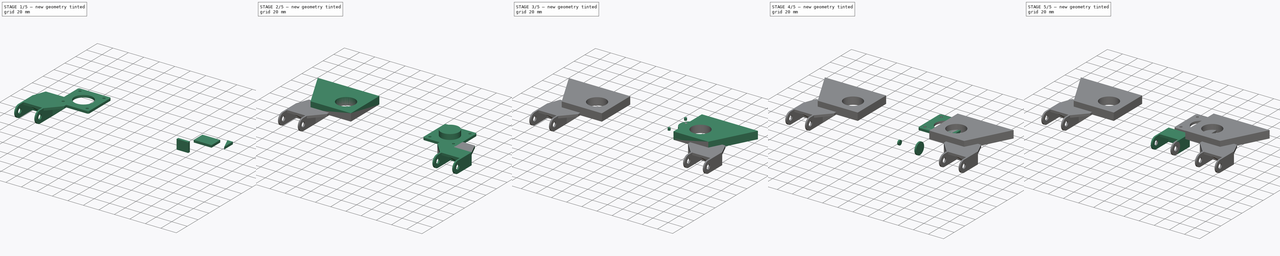
[diagram: build sequence overview — one tinted view per stage of 5, left to right]
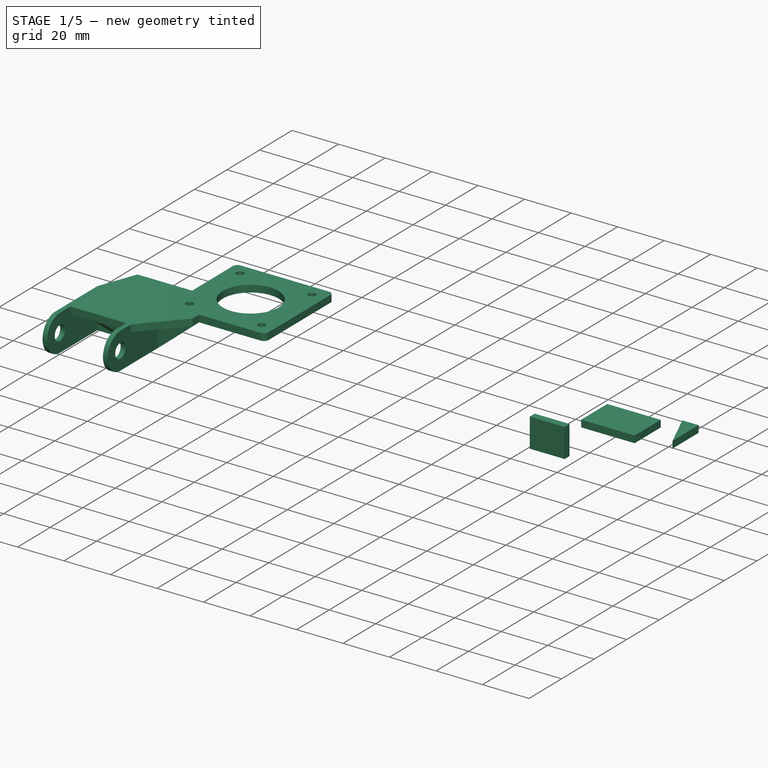
[diagram: stage 1 of 5 — iso view after this stage's code; geometry added in this stage tinted green]
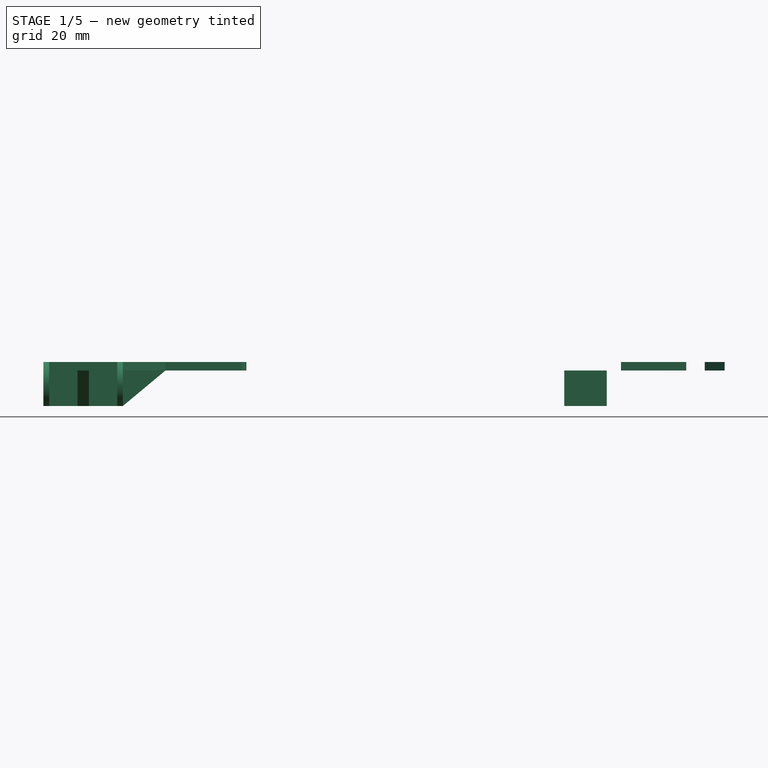
[diagram: stage 1 of 5 — front view after this stage's code; geometry added in this stage tinted green]
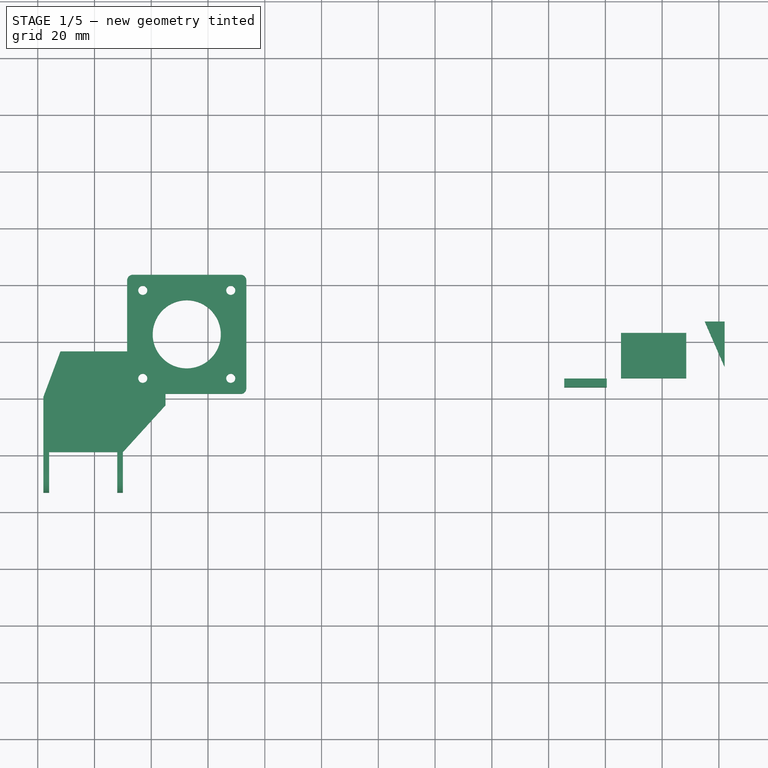
[diagram: stage 1 of 5 — top view after this stage's code; geometry added in this stage tinted green]
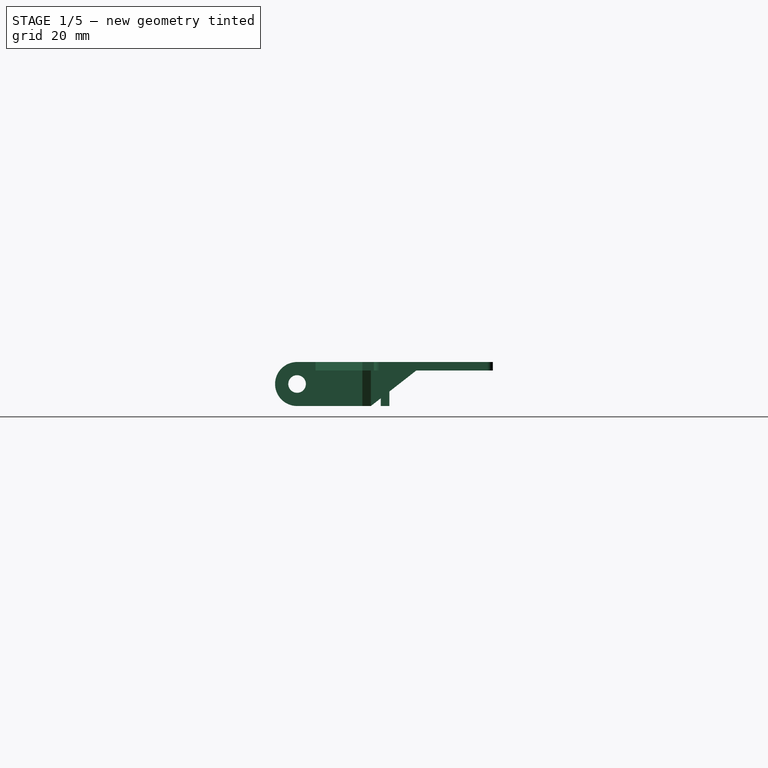
[diagram: stage 1 of 5 — right view after this stage's code; geometry added in this stage tinted green]
FCSTD DOCUMENT  (FreeCAD 0.18R14555 (Git shallow))
Label: extruder-motor-dragchain-top
License: All rights reserved
LicenseURL: http://en.wikipedia.org/wiki/All_rights_reserved
objects: Part::Feature×14, Part::Box×11, Part::Cylinder×11, Part::Cut×6, Part::MultiFuse×5, Sketcher::SketchObject×3, PartDesign::Pad×3, PartDesign::Body×3, Part::Fillet×1
note: 60 computed .brp shape members not serialized (recipe doc carries the construction recipe); baked Part::Feature solids carry a one-line shape summary decoded from their .brp

FEATURE [Part::Box] Box017  label="Cube013"
  AttacherType = Attacher::AttachEngine3D
  Height = 3
  Length = 23
  Placement = pos=(65.5,-13,0) rot=(0,0,1;0rad)
  Width = 16
FEATURE [Part::Feature] Body004004  label="support-1"
  Placement = pos=(78.5,-8.5,1.5) rot=(0,0,1;0rad)
  shape: bbox 3 x 16 x 12.5 mm, 5 faces (baked)
FEATURE [Sketcher::SketchObject] Sketch
  MapMode = 5
  Support = -> [XY_Plane]
  sketch-geometry (3):
    g0: LineSegment StartX=95 StartY=7 StartZ=0 EndX=102 EndY=7 EndZ=0
    g1: LineSegment StartX=102 StartY=7 StartZ=0 EndX=102 EndY=-9 EndZ=0
    g2: LineSegment StartX=102 StartY=-9 StartZ=0 EndX=95 EndY=7 EndZ=0
  constraints (5):
    c: Horizontal(g0)
    c: Coincident(g0,g1)
    c: Vertical(g1)
    c: Coincident(g1,g2)
    c: Coincident(g2,g0)
FEATURE [PartDesign::Pad] Pad
  Length = 3
  Length2 = 100
  Profile = -> Sketch
  Type = 0
FEATURE [Part::Feature] Body004006001  label="Body004008"
  Placement = pos=(0.5,0.5,0) rot=(0,0,1;0rad)
  shape: bbox 15 x 16.5 x 3 mm, 5 faces (baked)
FEATURE [Part::Feature] Body004007001  label="Body004009"
  Placement = pos=(72.5,5.5,13.5) rot=(0,0,1;0rad)
  shape: bbox 4 x 16.5 x 12.5 mm, 5 faces (baked)
FEATURE [Part::Box] Box019  label="Cube015"
  AttacherType = Attacher::AttachEngine3D
  Height = 12.5
  Length = 15
  Placement = pos=(45.5,-16,-12.5) rot=(0,0,1;0rad)
  Width = 3
FEATURE [Part::Feature] Fusion002003001_solid  label="left-solid"
  shape: bbox 65 x 76.75 x 15.5 mm, 43 faces (baked)
FEATURE [Part::Feature] Cut001007  label="motor-mounter-right"
  Placement = pos=(-108.5,-18.5,0) rot=(0,0,1;0rad)
  shape: bbox 42 x 42 x 3 mm, 15 faces (baked)
FEATURE [Part::Feature] Cut001008  label="chain-mounter-right"
  Placement = pos=(-131,-19.5,2) rot=(0,0,1;0rad)
  shape: bbox 28 x 33.75 x 15.5 mm, 29 faces (baked)
FEATURE [Part::Box] Box020  label="Cube016"
  AttacherType = Attacher::AttachEngine3D
  Height = 3
  Length = 31
  Placement = pos=(-138,-19.5,0) rot=(0,0,1;0rad)
  Width = 16
FEATURE [Part::Feature] Body004007002001  label="Body004007003"
  Placement = pos=(-132,-4.5,2.5) rot=(0,0,1;0rad)
  shape: bbox 3 x 16 x 12.5 mm, 5 faces (baked)
FEATURE [Part::Box] Box021  label="Cube017"
  AttacherType = Attacher::AttachEngine3D
  Height = 3
  Length = 15
  Placement = pos=(-110,-22.5,0) rot=(0,0,1;0rad)
  Width = 6
FEATURE [Part::Feature] Body004007002002001  label="Body004007002003"
  Placement = pos=(-2.5,-19.5,1.5) rot=(0,0,1;0rad)
  shape: bbox 15 x 3 x 12.5 mm, 5 faces (baked)
FEATURE [Part::Feature] Body004007002002002001  label="Body004007002002005"
  Placement = pos=(6,-9,0) rot=(0,0,1;0rad)
  shape: bbox 6 x 16 x 3 mm, 5 faces (baked)
FEATURE [Part::Feature] Body004007002002003001  label="Body004007002002006"
  Placement = pos=(-5.5,3,0) rot=(0,0,1;0rad)
  shape: bbox 15 x 16.5 x 3 mm, 5 faces (baked)
FEATURE [Part::Feature] Body004007002002004001  label="Body004007002002007"
  Placement = pos=(-126,4.5,16) rot=(0,0,1;0rad)
  shape: bbox 4 x 16.5 x 12.5 mm, 5 faces (baked)
FEATURE [Part::Cut] Cut001009
  Base = -> Box020
  Tool = -> Body004007002002002001
FEATURE [Part::MultiFuse] Fusion002004  label="right-raw"
  Shapes = -> [Cut001007,Body004007002001,Cut001009,Body004007002002001,Cut001008,Body004007002002004001,Box021,Body004007002002003001]
FEATURE [Part::Feature] Fusion002004001_solid  label="right-solid"
  shape: bbox 71.5 x 76.75 x 15.5 mm, 44 faces (baked)
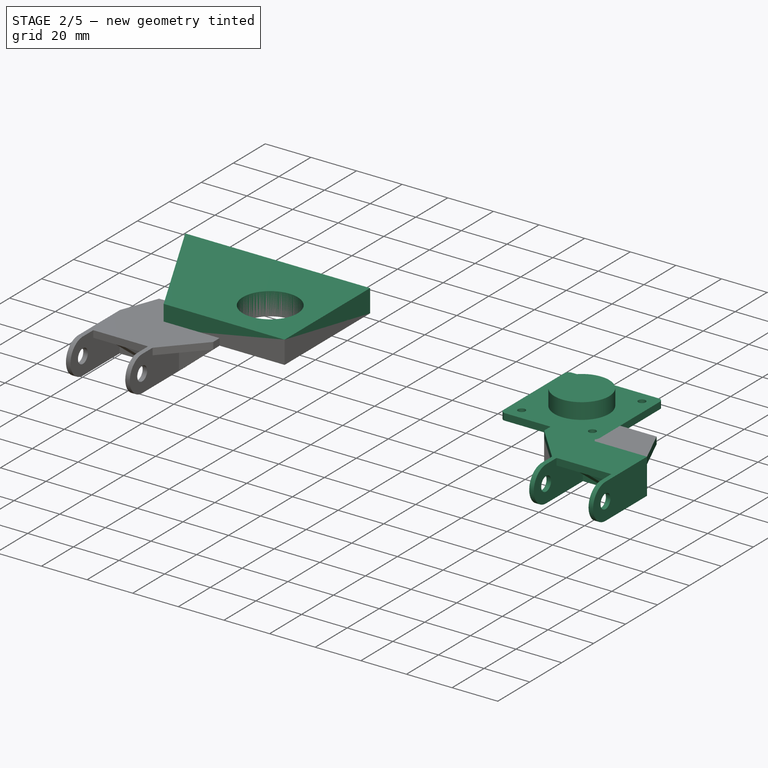
[diagram: stage 2 of 5 — iso view after this stage's code; geometry added in this stage tinted green]
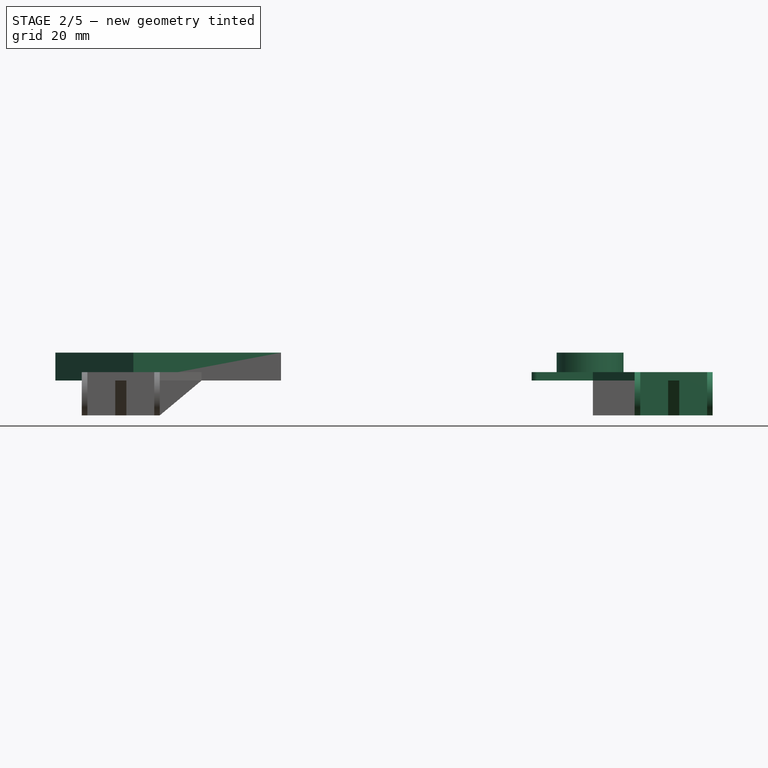
[diagram: stage 2 of 5 — front view after this stage's code; geometry added in this stage tinted green]
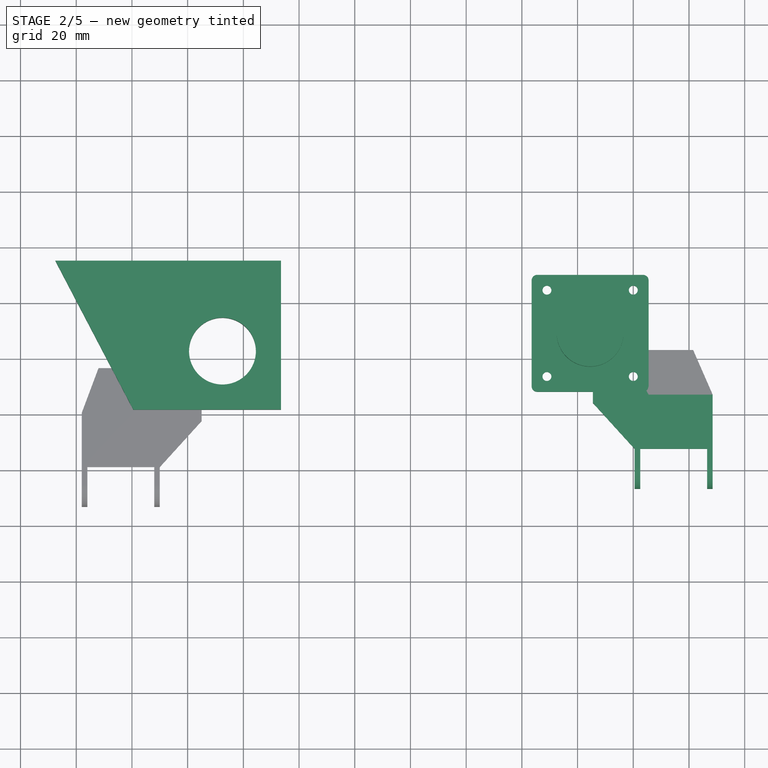
[diagram: stage 2 of 5 — top view after this stage's code; geometry added in this stage tinted green]
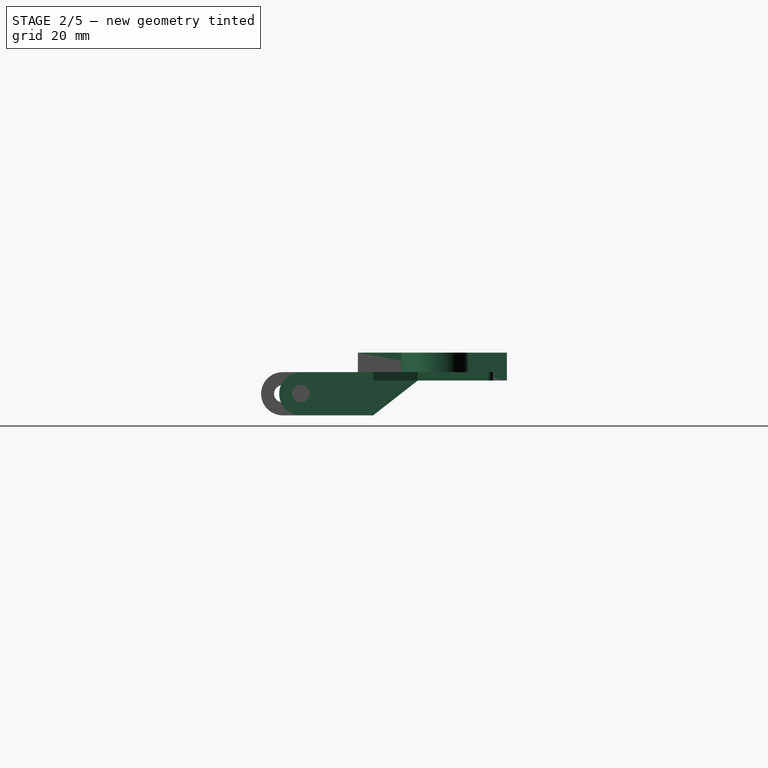
[diagram: stage 2 of 5 — right view after this stage's code; geometry added in this stage tinted green]
FEATURE [PartDesign::Body] Body004002
  Group = -> [Sketch002,Pad002]
  Origin = -> Origin002
  Tip = -> Pad002
FEATURE [Sketcher::SketchObject] Sketch003
  MapMode = 5
  Support = -> [XY_Plane003]
  sketch-geometry (4):
    g0: LineSegment StartX=-147.5 StartY=35 StartZ=0 EndX=-66.5 EndY=35 EndZ=0
    g1: LineSegment StartX=-66.5 StartY=35 StartZ=0 EndX=-66.5 EndY=-18.5 EndZ=0
    g2: LineSegment StartX=-66.5 StartY=-18.5 StartZ=0 EndX=-119.5 EndY=-18.5 EndZ=0
    g3: LineSegment StartX=-119.5 StartY=-18.5 StartZ=0 EndX=-147.5 EndY=35 EndZ=0
  constraints (6):
    c: Horizontal(g0)
    c: Coincident(g0,g1)
    c: Vertical(g1)
    c: Coincident(g1,g2)
    c: Horizontal(g2)
    c: Coincident(g2,g3)
FEATURE [PartDesign::Pad] Pad003
  Length = 10
  Length2 = 100
  Profile = -> Sketch003
  Type = 0
FEATURE [PartDesign::Body] Body004003
  Group = -> [Sketch003,Pad003]
  Origin = -> Origin003
  Tip = -> Pad003
FEATURE [Part::Cylinder] Cylinder020
  Angle = 360
  AttacherType = Attacher::AttachEngine3D
  Height = 10
  Placement = pos=(44.5,9,0) rot=(0,0,1;0rad)
  Radius = 12
FEATURE [Part::Cylinder] Cylinder021
  Angle = 360
  AttacherType = Attacher::AttachEngine3D
  Height = 10
  Placement = pos=(-87.5,2.5,0) rot=(0,0,1;0rad)
  Radius = 12
FEATURE [Part::Cut] Cut001003  label="right-ref"
  Base = -> Body004003
  Tool = -> Cylinder021
FEATURE [Part::Feature] Cut001004  label="left-chain-mounter"
  Placement = pos=(67.5,-13,2) rot=(0,0,1;0rad)
  shape: bbox 28 x 33.75 x 15.5 mm, 29 faces (baked)
FEATURE [Part::Feature] Cut001005  label="left-motor-mounter"
  Placement = pos=(23.5,-12,0) rot=(0,0,1;0rad)
  shape: bbox 42 x 42 x 3 mm, 15 faces (baked)
FEATURE [Part::Box] Box016  label="Cube012"
  AttacherType = Attacher::AttachEngine3D
  Height = 3
  Length = 5
  Placement = pos=(60.5,-13,0) rot=(0,0,1;0rad)
  Width = 4
FEATURE [PartDesign::Body] Body
  Group = -> [Sketch,Pad]
  Origin = -> Origin
  Placement = pos=(-13.5,-4,0) rot=(0,0,1;0rad)
  Tip = -> Pad
FEATURE [Part::Box] Box018  label="Cube014"
  AttacherType = Attacher::AttachEngine3D
  Height = 3
  Length = 15
  Placement = pos=(45.5,-16,0) rot=(0,0,1;0rad)
  Width = 4
FEATURE [Part::Cut] Cut001006
  Base = -> Box017
  Tool = -> Body
FEATURE [Part::MultiFuse] Fusion002003  label="left-raw"
  Shapes = -> [Box019,Body004007001,Cut001004,Body004006001,Cut001005,Box016,Body004004,Box018,Cut001006]
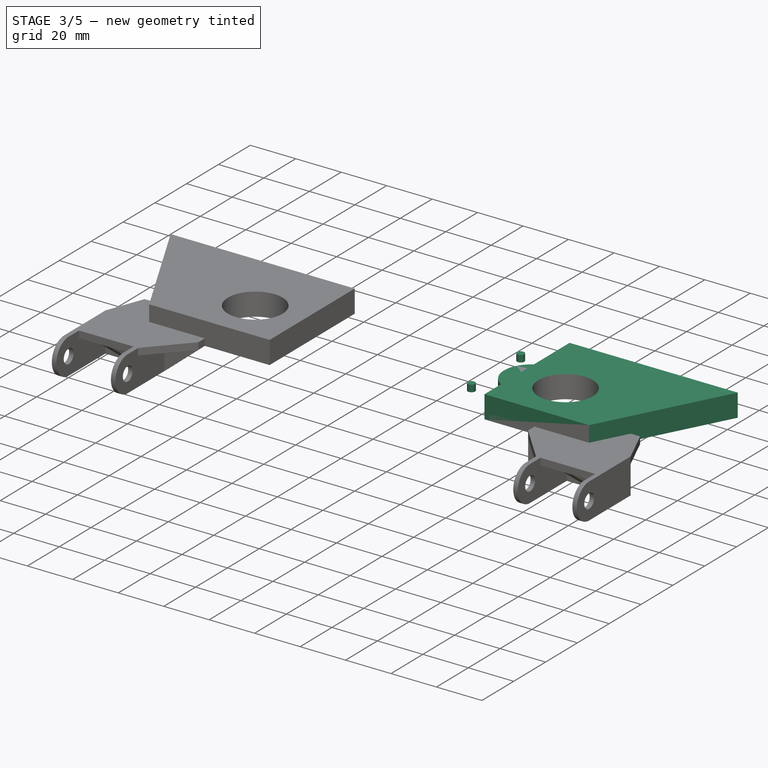
[diagram: stage 3 of 5 — iso view after this stage's code; geometry added in this stage tinted green]
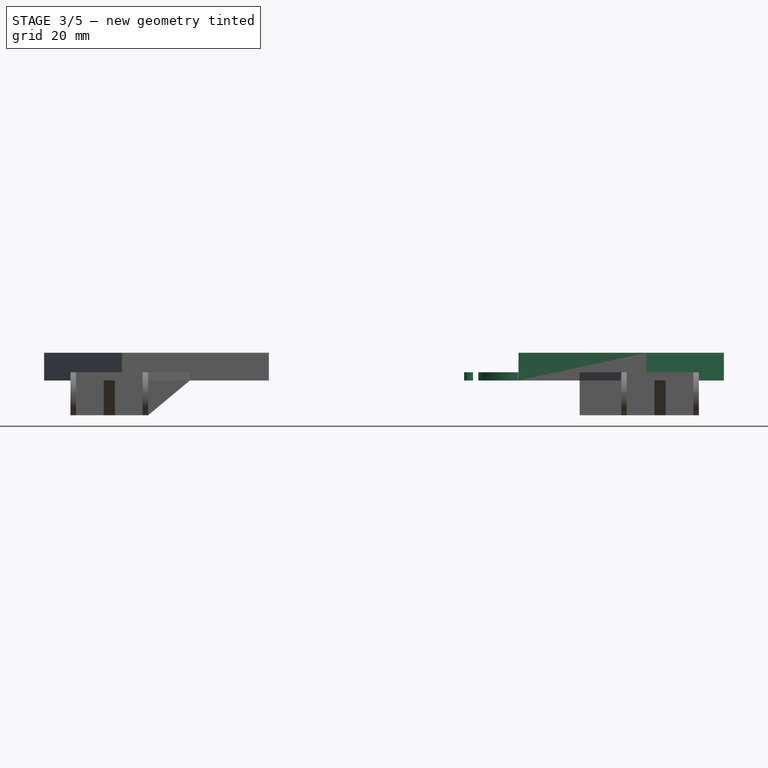
[diagram: stage 3 of 5 — front view after this stage's code; geometry added in this stage tinted green]
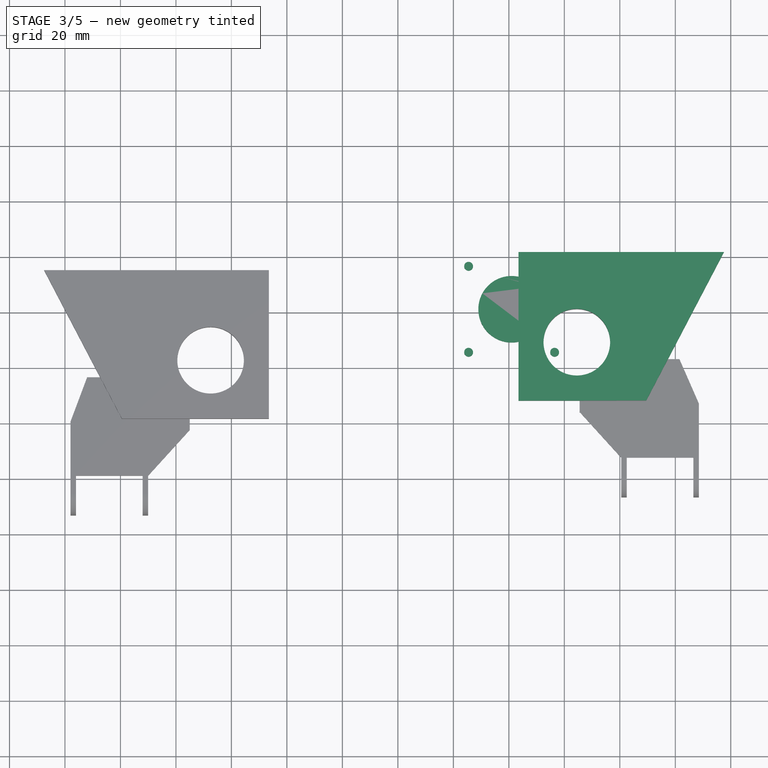
[diagram: stage 3 of 5 — top view after this stage's code; geometry added in this stage tinted green]
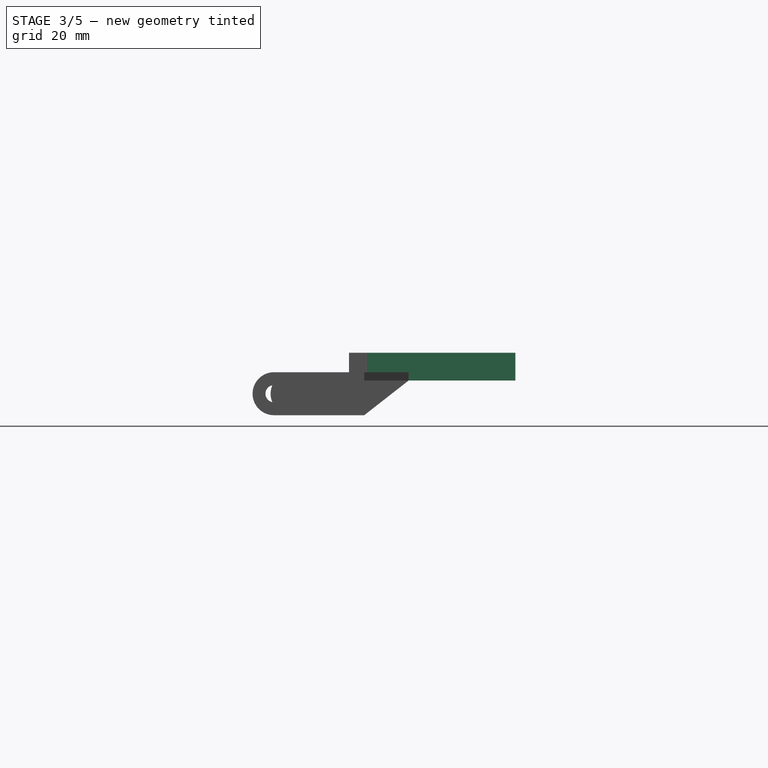
[diagram: stage 3 of 5 — right view after this stage's code; geometry added in this stage tinted green]
FEATURE [Part::Cylinder] Cylinder
  Angle = 360
  AttacherType = Attacher::AttachEngine3D
  Height = 3
  Placement = pos=(5.5,5.5,0) rot=(0,0,1;0rad)
  Radius = 1.6
FEATURE [Part::Cylinder] Cylinder016
  Angle = 360
  AttacherType = Attacher::AttachEngine3D
  Height = 3
  Placement = pos=(5.5,36.5,0) rot=(0,0,1;0rad)
  Radius = 1.6
FEATURE [Part::Cylinder] Cylinder017
  Angle = 360
  AttacherType = Attacher::AttachEngine3D
  Height = 3
  Placement = pos=(36.5,5.5,0) rot=(0,0,1;0rad)
  Radius = 1.6
FEATURE [Part::Cylinder] Cylinder018
  Angle = 360
  AttacherType = Attacher::AttachEngine3D
  Height = 3
  Placement = pos=(36.5,36.5,0) rot=(0,0,1;0rad)
  Radius = 1.6
FEATURE [Part::Cylinder] Cylinder019
  Angle = 360
  AttacherType = Attacher::AttachEngine3D
  Height = 3
  Placement = pos=(21,21,0) rot=(0,0,1;0rad)
  Radius = 12
FEATURE [Sketcher::SketchObject] Sketch002
  MapMode = 5
  Support = -> [XY_Plane002]
  sketch-geometry (4):
    g0: LineSegment StartX=97.5 StartY=41.5 StartZ=0 EndX=23.5 EndY=41.5 EndZ=0
    g1: LineSegment StartX=23.5 StartY=41.5 StartZ=0 EndX=23.5 EndY=-12 EndZ=0
    g2: LineSegment StartX=23.5 StartY=-12 StartZ=0 EndX=69.5 EndY=-12 EndZ=0
    g3: LineSegment StartX=69.5 StartY=-12 StartZ=0 EndX=97.5 EndY=41.5 EndZ=0
  constraints (7):
    c: Horizontal(g0)
    c: Coincident(g0,g1)
    c: Vertical(g1)
    c: Coincident(g1,g2)
    c: Horizontal(g2)
    c: Coincident(g2,g3)
    c: Coincident(g3,g0)
FEATURE [PartDesign::Pad] Pad002
  Length = 10
  Length2 = 100
  Profile = -> Sketch002
  Type = 0
FEATURE [Part::Cut] Cut001002  label="left-ref"
  Base = -> Body004002
  Tool = -> Cylinder020
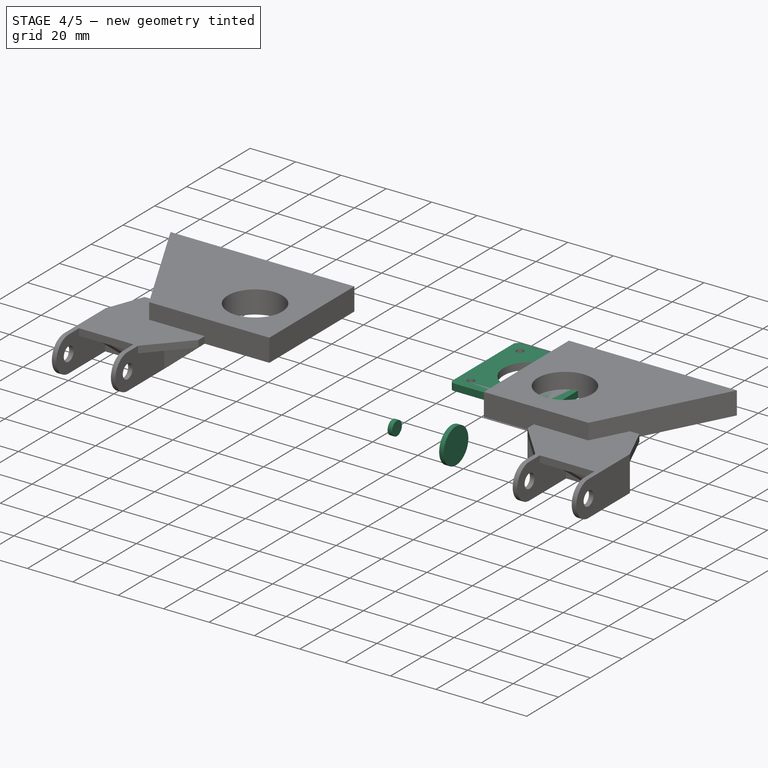
[diagram: stage 4 of 5 — iso view after this stage's code; geometry added in this stage tinted green]
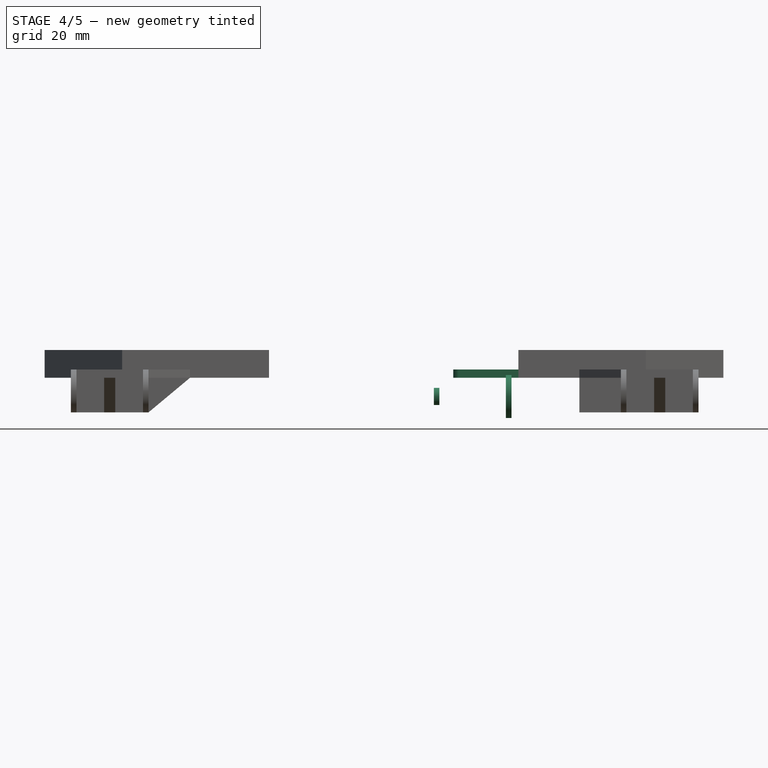
[diagram: stage 4 of 5 — front view after this stage's code; geometry added in this stage tinted green]
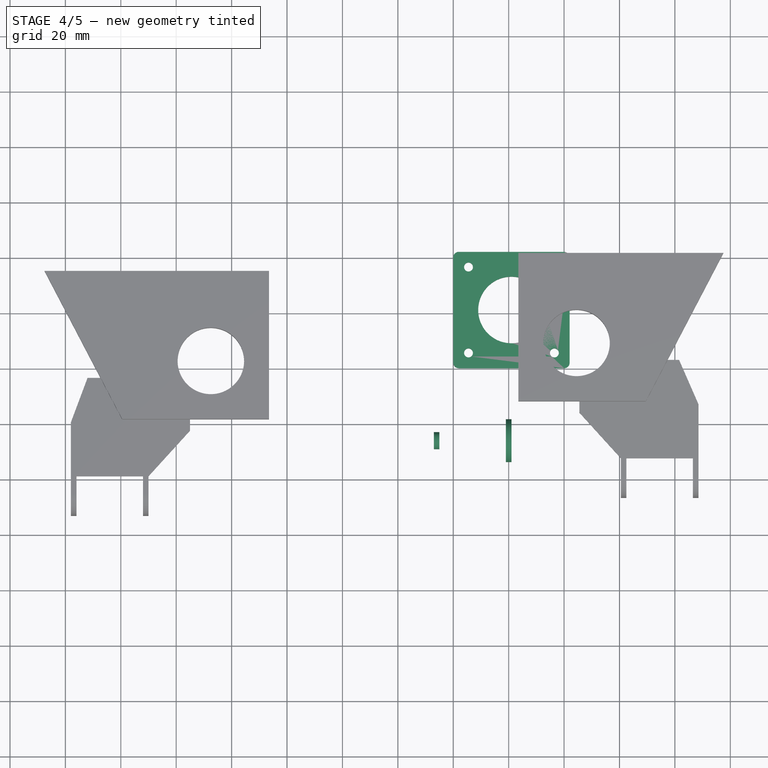
[diagram: stage 4 of 5 — top view after this stage's code; geometry added in this stage tinted green]
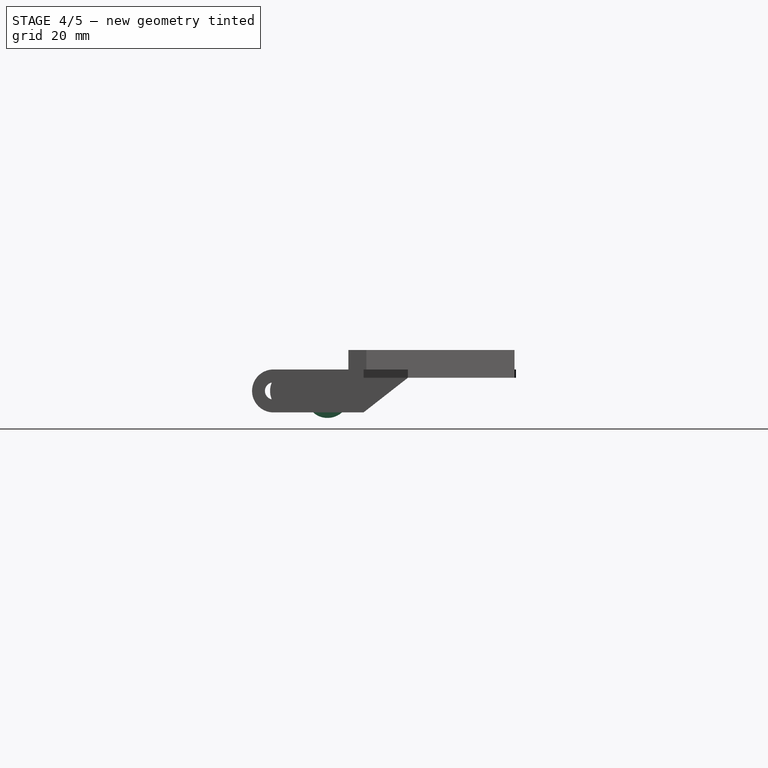
[diagram: stage 4 of 5 — right view after this stage's code; geometry added in this stage tinted green]
FEATURE [Part::Cylinder] Cylinder013
  Angle = 360
  AttacherType = Attacher::AttachEngine3D
  Height = 2
  Placement = pos=(21,-26,-6.75) rot=(0,-1,0;1.5708rad)
  Radius = 7.75
  expr: Radius = 15.5 / 2
FEATURE [Part::Cylinder] Cylinder014
  Angle = 360
  AttacherType = Attacher::AttachEngine3D
  Height = 2
  Placement = pos=(-5,-26,-6.75) rot=(0,-1,0;1.5708rad)
  Radius = 3.1
  expr: Radius = 3.1
FEATURE [Part::Cylinder] Cylinder015
  Angle = 360
  AttacherType = Attacher::AttachEngine3D
  Height = 2
  Placement = pos=(21,-26,-6.75) rot=(0,-1,0;1.5708rad)
  Radius = 3.1
  expr: Radius = 3.1
FEATURE [Part::MultiFuse] Fusion001
  Shapes = -> [Cylinder014,Cylinder015]
FEATURE [Part::Box] Box  label="Cube"
  AttacherType = Attacher::AttachEngine3D
  Height = 3
  Length = 42
  Width = 42
FEATURE [Part::Fillet] Fillet
  Base = -> Box
  Edges = 4 edges r=2: [Edge1,Edge3,Edge5,Edge7]
FEATURE [Part::MultiFuse] Fusion002002
  Shapes = -> [Cylinder019,Cylinder018,Cylinder017,Cylinder016,Cylinder]
FEATURE [Part::Cut] Cut001  label="motor-mounter"
  Base = -> Fillet
  Tool = -> Fusion002002
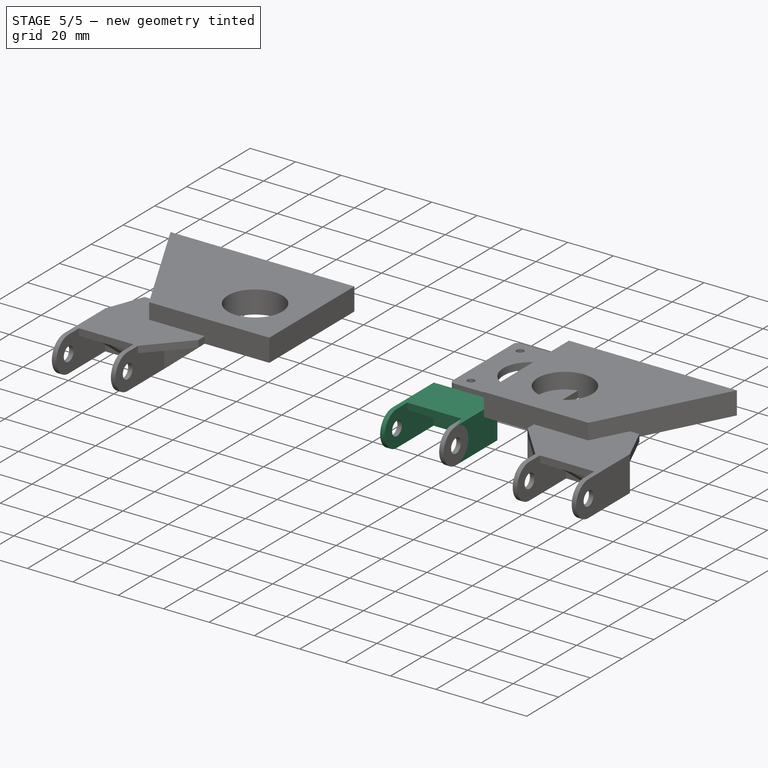
[diagram: stage 5 of 5 — iso view after this stage's code; geometry added in this stage tinted green]
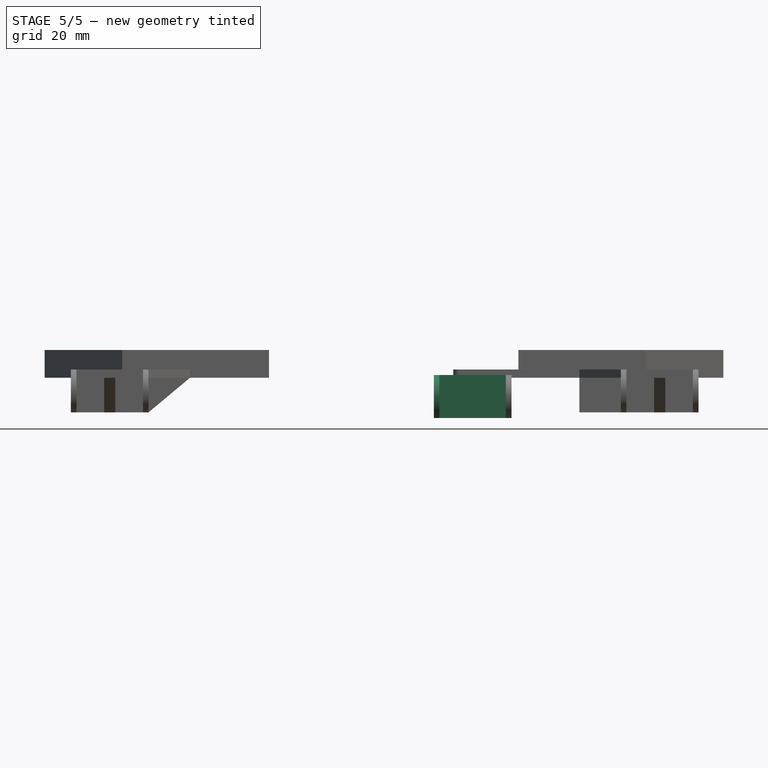
[diagram: stage 5 of 5 — front view after this stage's code; geometry added in this stage tinted green]
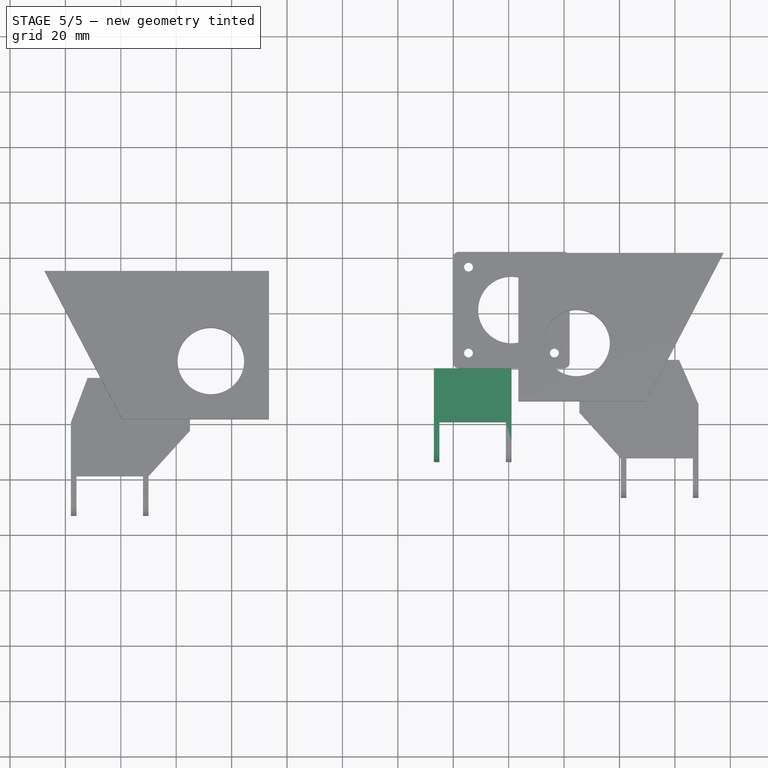
[diagram: stage 5 of 5 — top view after this stage's code; geometry added in this stage tinted green]
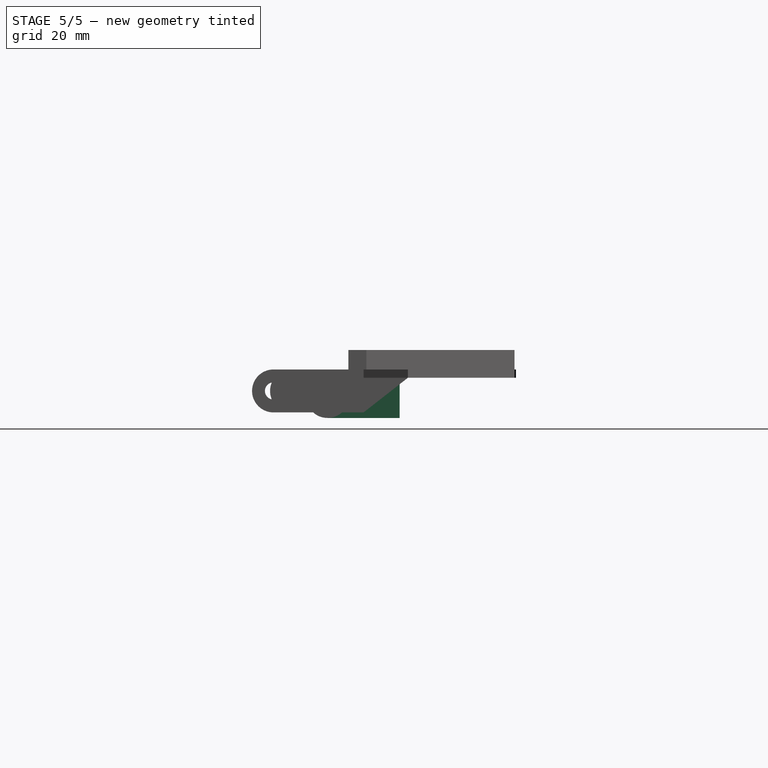
[diagram: stage 5 of 5 — right view after this stage's code; geometry added in this stage tinted green]
FEATURE [Part::Box] Box012  label="Cube008"
  AttacherType = Attacher::AttachEngine3D
  Height = 15.5
  Length = 28
  Placement = pos=(-7,-3,-14.5) rot=(0,0,1;0rad)
  Width = 3
FEATURE [Part::Box] Box013  label="Cube009"
  AttacherType = Attacher::AttachEngine3D
  Height = 3
  Length = 24
  Placement = pos=(-5,-19.5,-2) rot=(0,0,1;0rad)
  Width = 16.5
FEATURE [Part::Box] Box014  label="Cube010"
  AttacherType = Attacher::AttachEngine3D
  Height = 15.5
  Length = 2
  Placement = pos=(-7,-26,-14.5) rot=(0,0,1;0rad)
  Width = 23
FEATURE [Part::Box] Box015  label="Cube011"
  AttacherType = Attacher::AttachEngine3D
  Height = 15.5
  Length = 2
  Placement = pos=(19,-26,-14.5) rot=(0,0,1;0rad)
  Width = 23
FEATURE [Part::Cylinder] Cylinder012
  Angle = 360
  AttacherType = Attacher::AttachEngine3D
  Height = 2
  Placement = pos=(-5,-26,-6.75) rot=(0,-1,0;1.5708rad)
  Radius = 7.75
  expr: Radius = 15.5 / 2
FEATURE [Part::MultiFuse] Fusion
  Shapes = -> [Cylinder013,Cylinder012,Box015,Box014,Box013,Box012]
FEATURE [Part::Cut] Cut  label="chain-mounter"
  Base = -> Fusion
  Tool = -> Fusion001
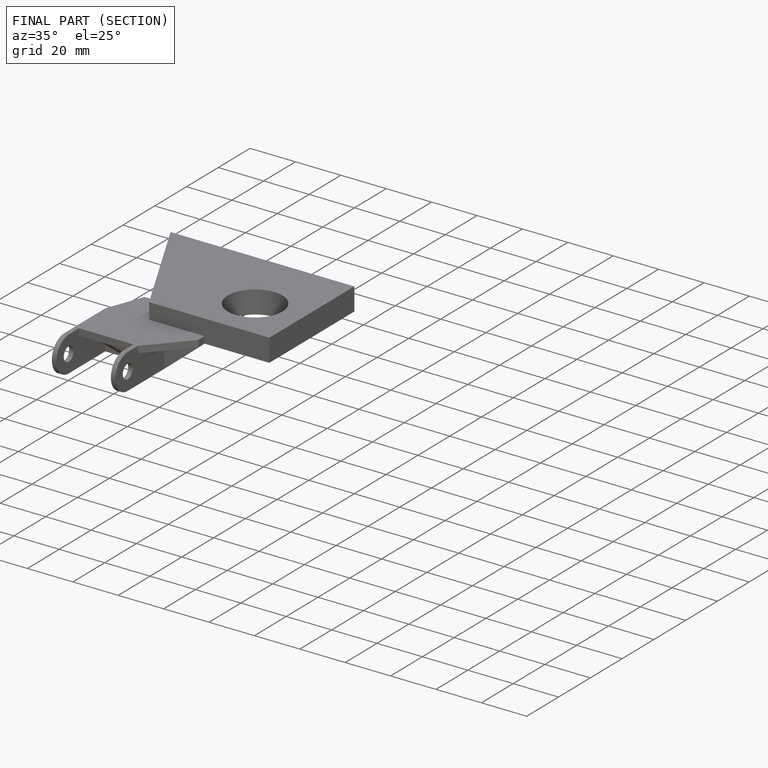
[diagram: finished part — half-section view (interior)]
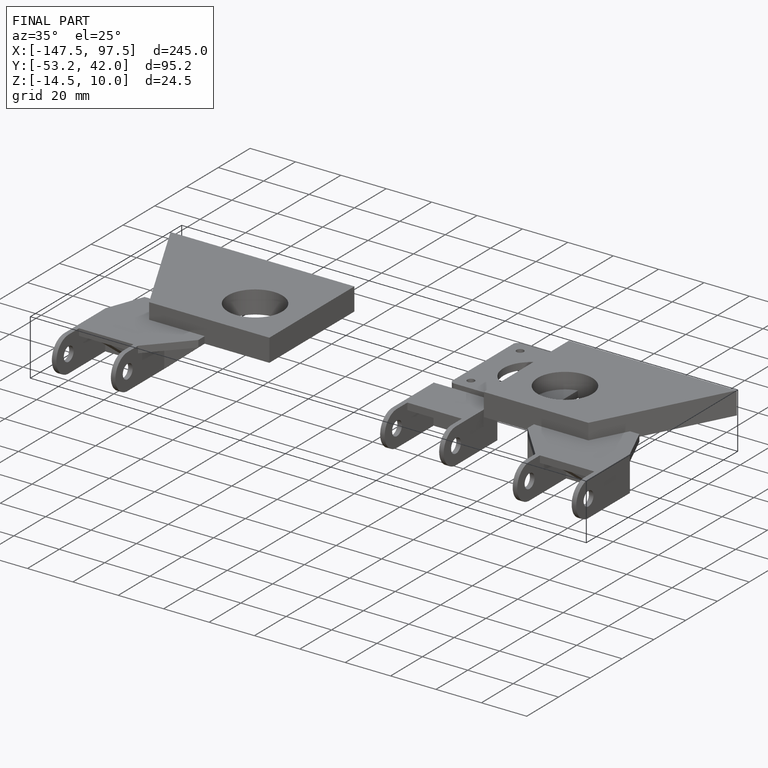
[diagram: finished part — iso view with bounding-box wireframe]
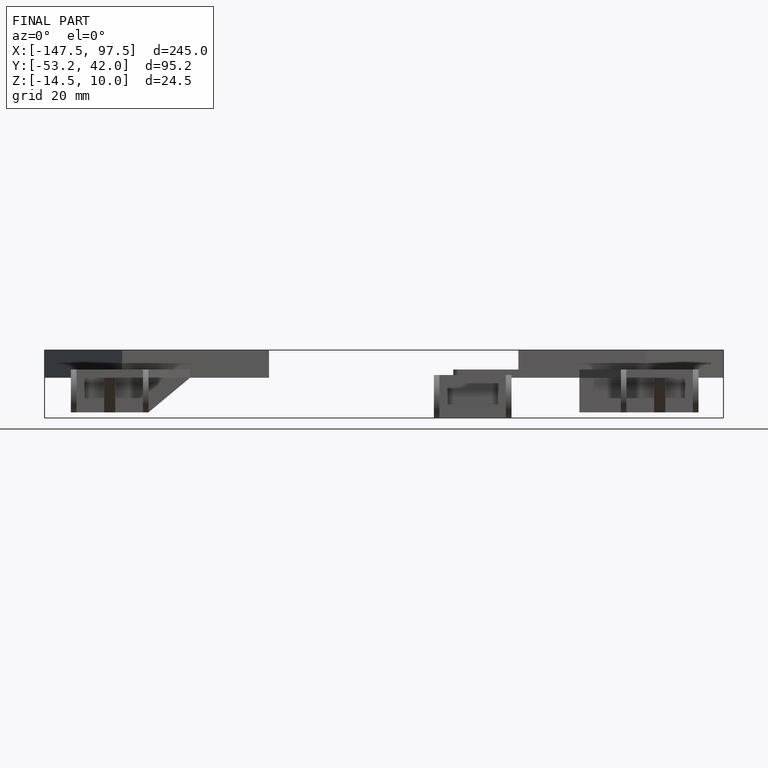
[diagram: finished part — front view with bounding-box wireframe]
